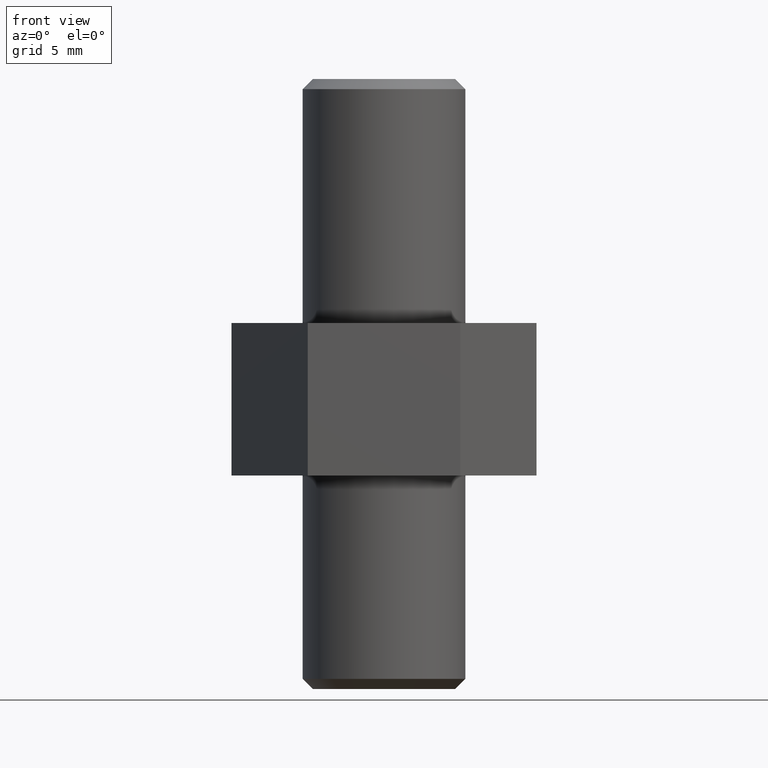
[diagram: clean part render]
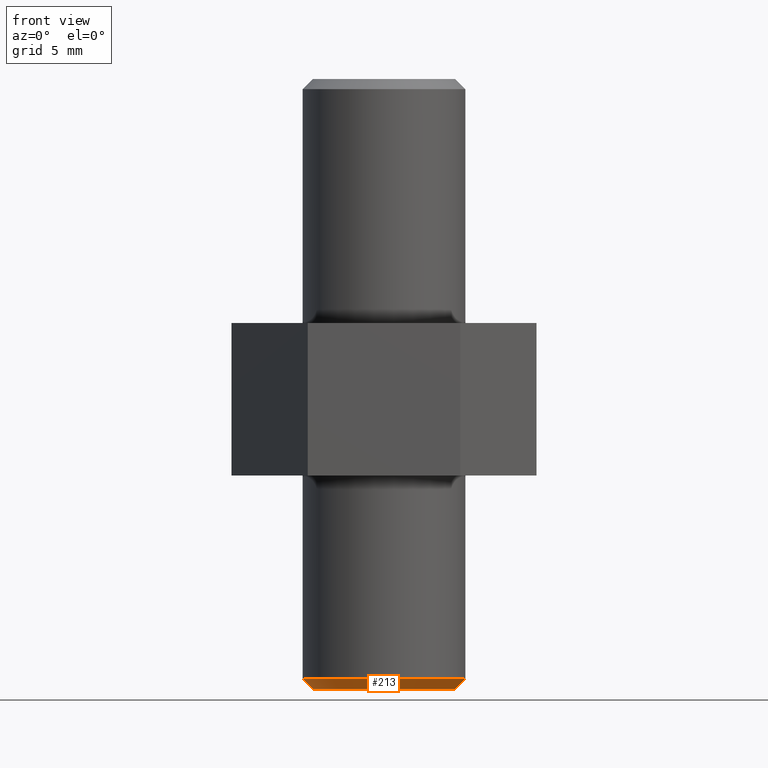
[diagram: same view with one face highlighted and labeled with its STEP entity id]
A machine part, front view. The second image highlights one B-rep face of the part: STEP entity #213.
In plain terms, the highlighted conical surface has half-angle 45 deg.
Its self-contained STEP definition (entity closure, byte-faithful):
#29=FACE_OUTER_BOUND('',#43,.T.);
#43=EDGE_LOOP('',(#155,#156,#157,#158));
#59=LINE('',#339,#81);
#81=VECTOR('',#276,3.75);
#103=CIRCLE('',#251,3.5);
#104=CIRCLE('',#252,4.);
#109=VERTEX_POINT('',#336);
#110=VERTEX_POINT('',#338);
#127=EDGE_CURVE('',#109,#109,#103,.T.);
#128=EDGE_CURVE('',#109,#110,#59,.T.);
#129=EDGE_CURVE('',#110,#110,#104,.T.);
#155=ORIENTED_EDGE('',*,*,#127,.T.);
#156=ORIENTED_EDGE('',*,*,#128,.T.);
#157=ORIENTED_EDGE('',*,*,#129,.T.);
#158=ORIENTED_EDGE('',*,*,#128,.F.);
#211=CONICAL_SURFACE('',#250,3.75,0.785398163397448);
#213=ADVANCED_FACE('',(#29),#211,.T.);
#250=AXIS2_PLACEMENT_3D('',#335,#272,#273);
#251=AXIS2_PLACEMENT_3D('',#337,#274,#275);
#252=AXIS2_PLACEMENT_3D('',#340,#277,#278);
#272=DIRECTION('center_axis',(0.,0.,1.));
#273=DIRECTION('ref_axis',(-1.,0.,0.));
#274=DIRECTION('center_axis',(0.,0.,1.));
#275=DIRECTION('ref_axis',(-1.,0.,0.));
#276=DIRECTION('',(0.707106781186547,-8.65956056235493E-17,0.707106781186547));
#277=DIRECTION('center_axis',(0.,0.,-1.));
#278=DIRECTION('ref_axis',(-1.,0.,0.));
#335=CARTESIAN_POINT('Origin',(0.,0.,-5.));
#336=CARTESIAN_POINT('',(3.5,4.28626379701574E-16,-5.25));
#337=CARTESIAN_POINT('Origin',(0.,0.,-5.25));
#338=CARTESIAN_POINT('',(4.,-4.89858719658941E-16,-4.75));
#339=CARTESIAN_POINT('',(3.75,-4.59242549680257E-16,-5.));
#340=CARTESIAN_POINT('Origin',(0.,0.,-4.75));